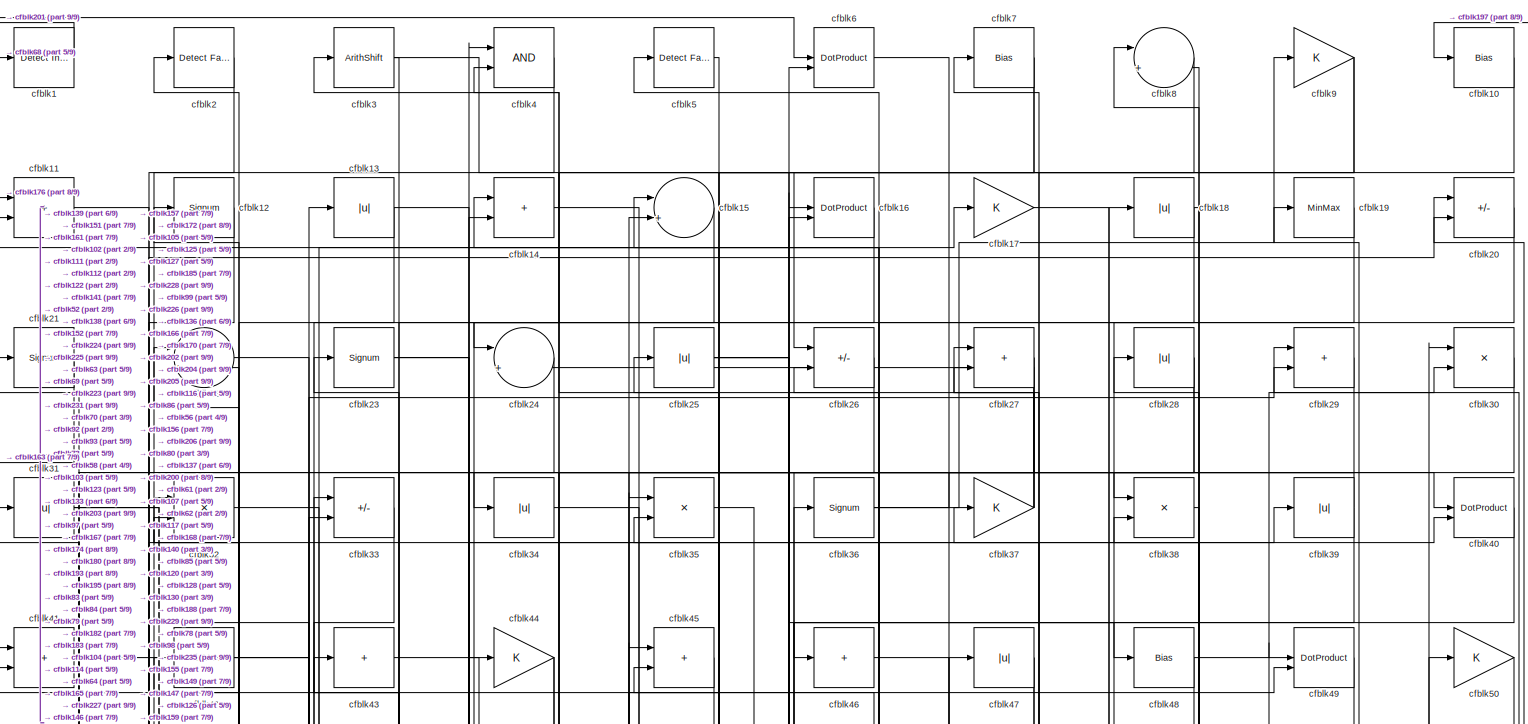
[diagram: root canvas - part 1/9, full width, top band]
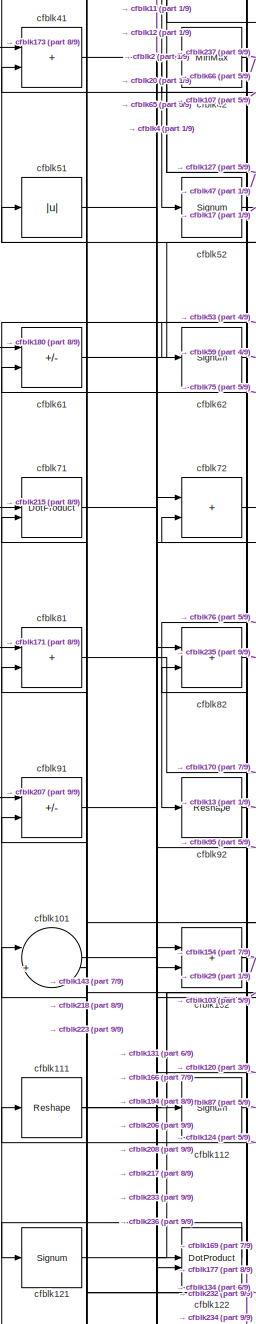
[diagram: root canvas - part 2/9, middle left region]
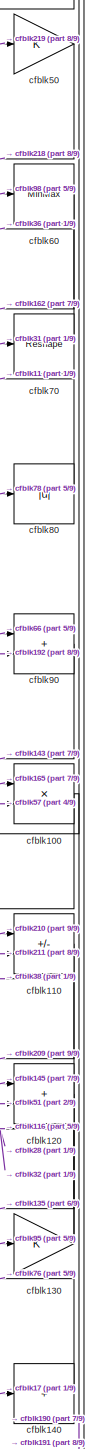
[diagram: root canvas - part 3/9, middle right region]
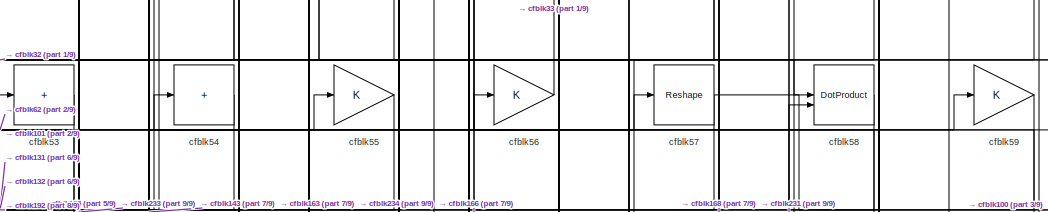
[diagram: root canvas - part 4/9, top center region]
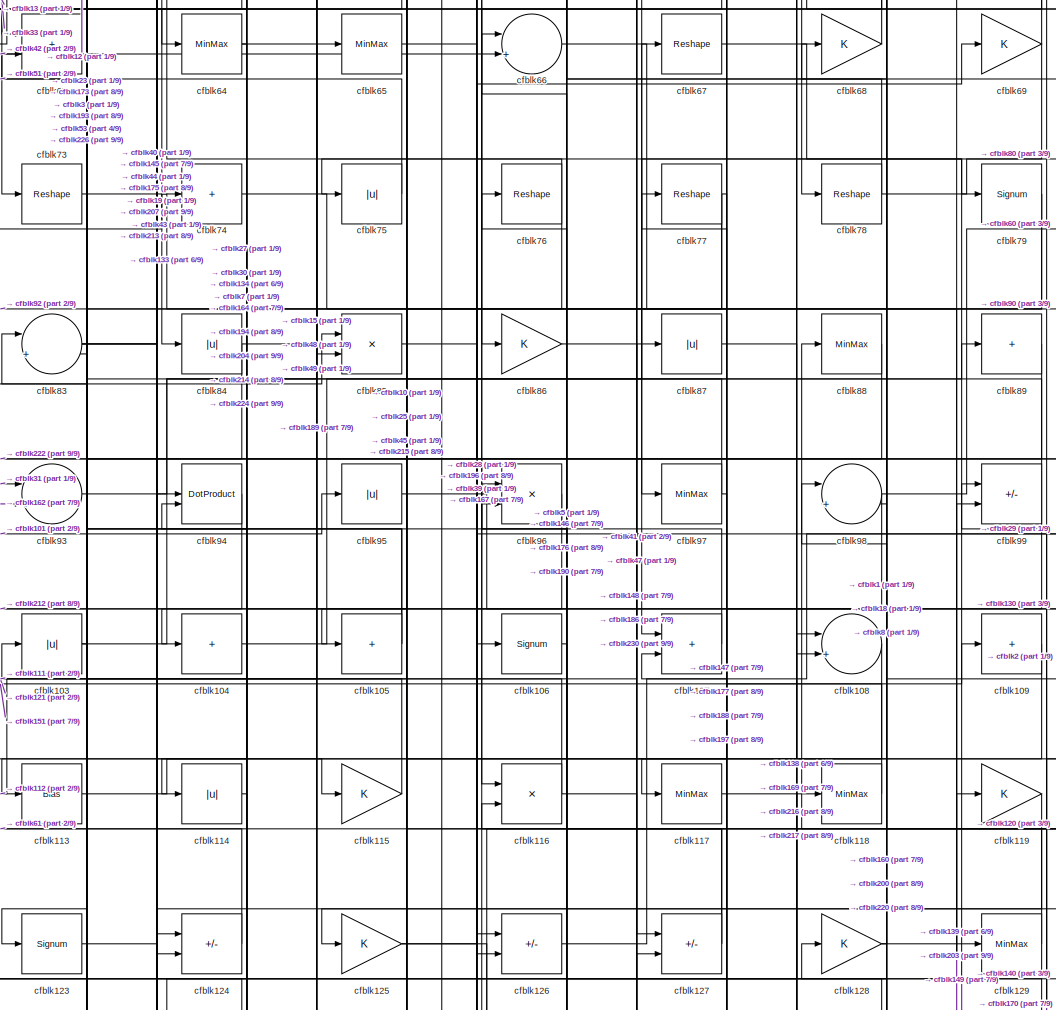
[diagram: root canvas - part 5/9, central region]
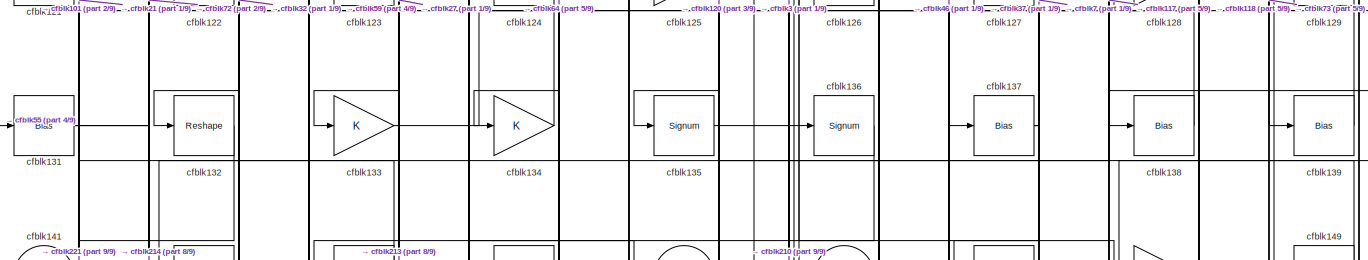
[diagram: root canvas - part 6/9, full width, middle band]
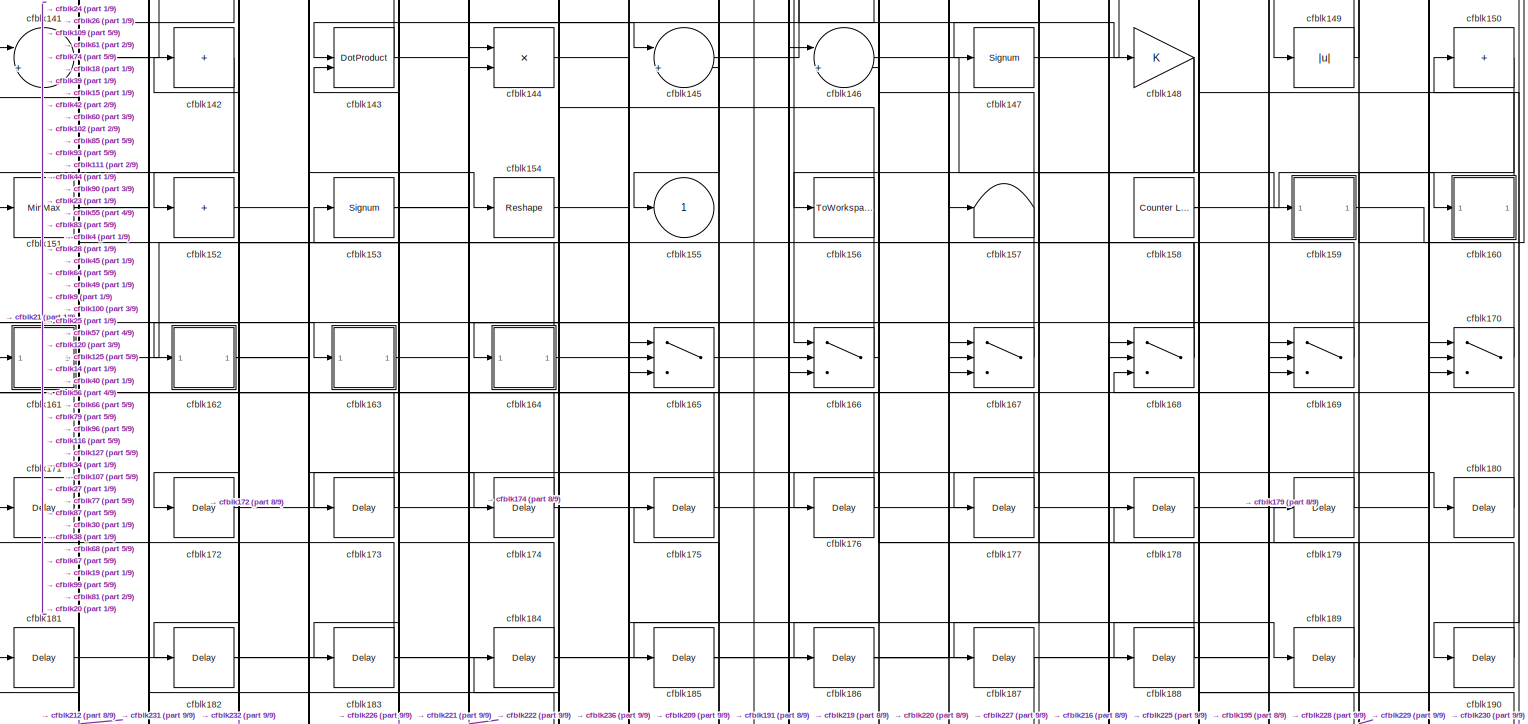
[diagram: root canvas - part 7/9, full width, bottom band]
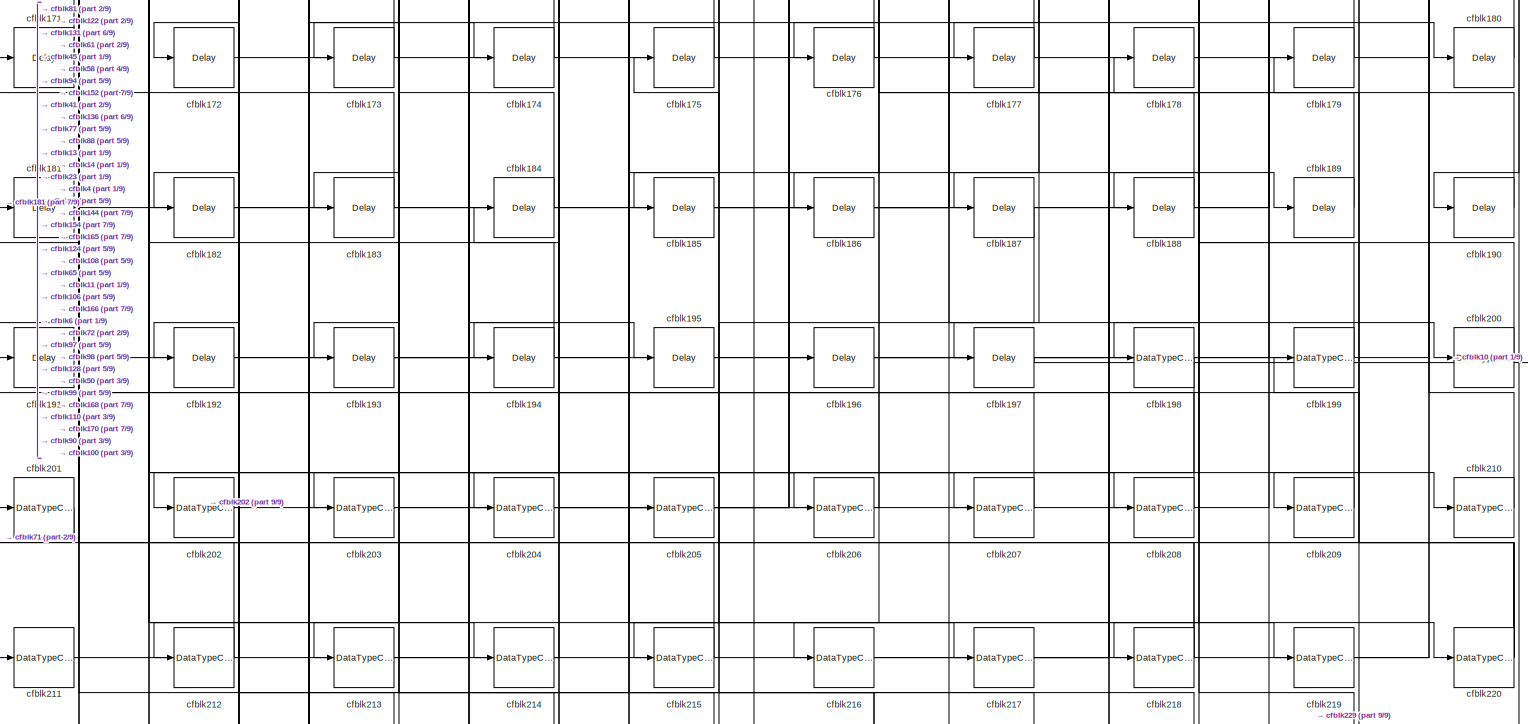
[diagram: root canvas - part 8/9, full width, bottom band]
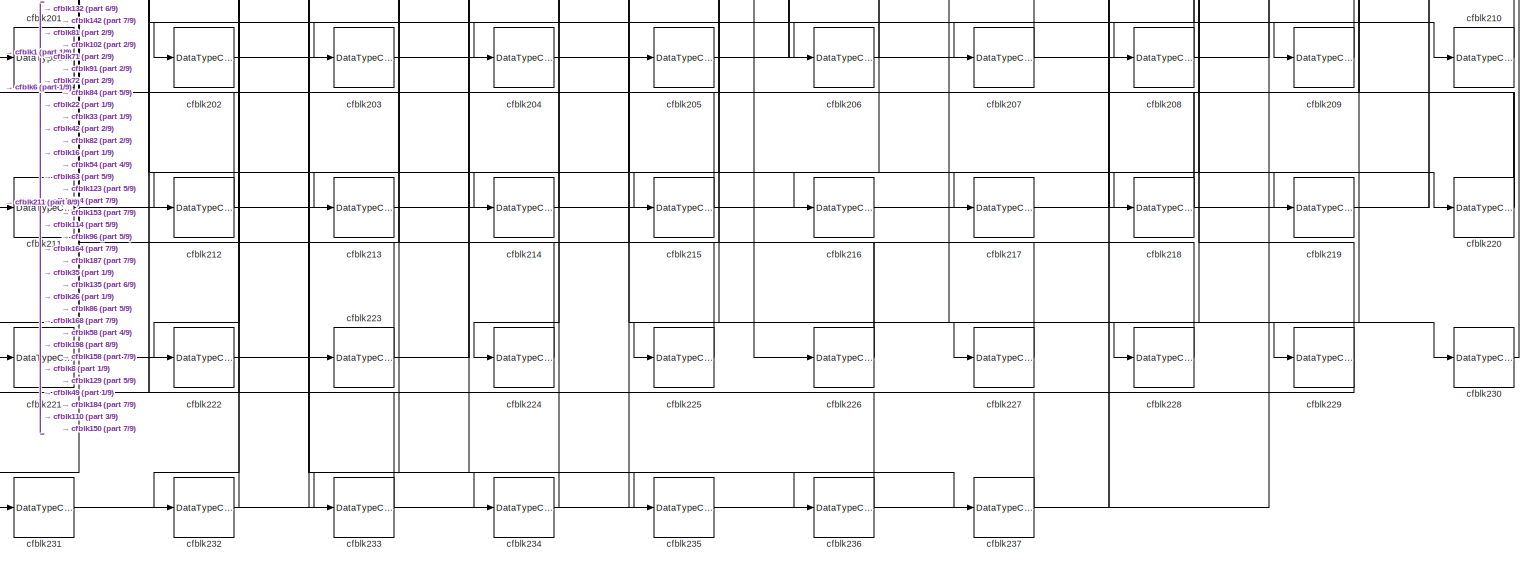
[diagram: root canvas - part 9/9, full width, bottom band]
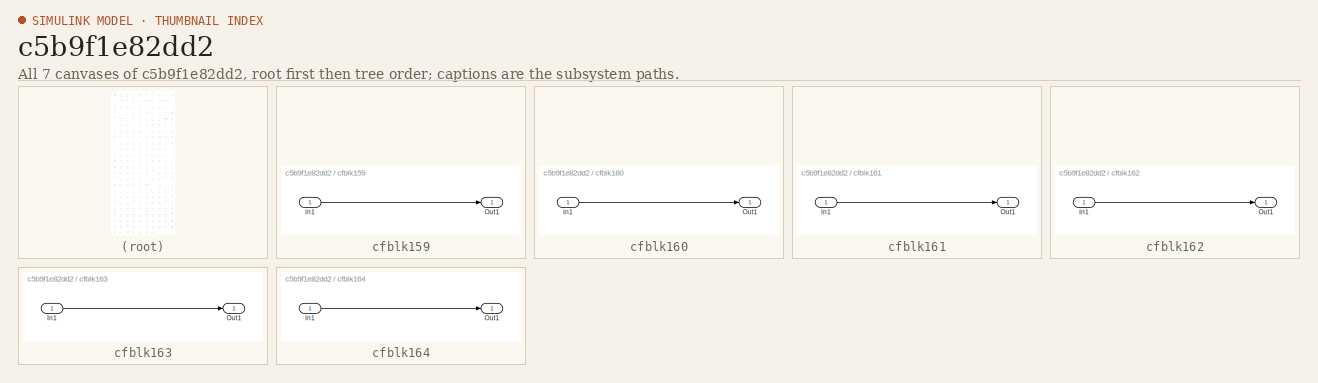
[diagram: thumbnail index - all 7 canvases of the model, root first then tree order]
MODEL slx_c5b9f1e82dd2
KIND model
CONFIG AbsTol = auto
CONFIG EnableMultiTasking = off
CONFIG FixedStep = auto
CONFIG MaxStep = auto
CONFIG MinStep = auto
CONFIG RelTol = 1e-3
CONFIG SampleTimeConstraint = Unconstrained
CONFIG SolverName = VariableStepAuto
CONFIG StartTime = 0.0
CONFIG StopTime = 10.0
BLOCK [Reference] cfblk1  REF=simulink/Logic and Bit
Operations/Detect
Increase
  LibrarySourceBlock = hdlsllib/Logic and Bit\nOperations/Detect\nIncrease
  SourceBlock = simulink/Logic and Bit\nOperations/Detect\nIncrease
  SourceType = Detect Increase
BLOCK [Bias] cfblk10
  Bias = 0.0
  SaturateOnIntegerOverflow = off
BLOCK [Product] cfblk100
  Inputs = */
  RndMeth = Zero
  SaturateOnIntegerOverflow = on
BLOCK [Sum] cfblk101
  Inputs = |++
BLOCK [Sum] cfblk102
  IconShape = rectangular
BLOCK [Abs] cfblk103
  SaturateOnIntegerOverflow = off
BLOCK [Sum] cfblk104
  IconShape = rectangular
  Inputs = +
BLOCK [Sum] cfblk105
  IconShape = rectangular
  Inputs = +
BLOCK [Signum] cfblk106
BLOCK [Sum] cfblk107
  IconShape = rectangular
BLOCK [Sum] cfblk108
  Inputs = |++
BLOCK [Sum] cfblk109
  IconShape = rectangular
  Inputs = +
BLOCK [Sum] cfblk11
  IconShape = rectangular
BLOCK [Sum] cfblk110
  IconShape = rectangular
  Inputs = +-
BLOCK [Reshape] cfblk111
BLOCK [Signum] cfblk112
BLOCK [Bias] cfblk113
  Bias = 0.0
  SaturateOnIntegerOverflow = off
BLOCK [Abs] cfblk114
  SaturateOnIntegerOverflow = off
BLOCK [Gain] cfblk115
BLOCK [Product] cfblk116
  Inputs = */
  RndMeth = Zero
  SaturateOnIntegerOverflow = on
BLOCK [MinMax] cfblk117
BLOCK [MinMax] cfblk118
BLOCK [Gain] cfblk119
BLOCK [Signum] cfblk12
BLOCK [Sum] cfblk120
  IconShape = rectangular
BLOCK [Signum] cfblk121
BLOCK [DotProduct] cfblk122
  OutDataTypeStr = Inherit: Inherit via internal rule
BLOCK [Signum] cfblk123
BLOCK [Sum] cfblk124
  IconShape = rectangular
  Inputs = +-
BLOCK [Gain] cfblk125
BLOCK [Sum] cfblk126
  IconShape = rectangular
  Inputs = +-
BLOCK [Sum] cfblk127
  IconShape = rectangular
  Inputs = +-
BLOCK [Gain] cfblk128
BLOCK [MinMax] cfblk129
BLOCK [Abs] cfblk13
  SaturateOnIntegerOverflow = off
BLOCK [Gain] cfblk130
BLOCK [Bias] cfblk131
  Bias = 0.0
  SaturateOnIntegerOverflow = off
BLOCK [Reshape] cfblk132
BLOCK [Gain] cfblk133
BLOCK [Gain] cfblk134
BLOCK [Signum] cfblk135
BLOCK [Signum] cfblk136
BLOCK [Bias] cfblk137
  Bias = 0.0
  SaturateOnIntegerOverflow = off
BLOCK [Bias] cfblk138
  Bias = 0.0
  SaturateOnIntegerOverflow = off
BLOCK [Bias] cfblk139
  Bias = 0.0
  SaturateOnIntegerOverflow = off
BLOCK [Sum] cfblk14
  IconShape = rectangular
BLOCK [Sum] cfblk140
  IconShape = rectangular
  Inputs = +
BLOCK [Sum] cfblk141
  Inputs = |++
BLOCK [Sum] cfblk142
  IconShape = rectangular
  Inputs = +
BLOCK [DotProduct] cfblk143
  OutDataTypeStr = Inherit: Inherit via internal rule
BLOCK [Product] cfblk144
  Inputs = */
  RndMeth = Zero
  SaturateOnIntegerOverflow = on
BLOCK [Sum] cfblk145
  Inputs = |++
BLOCK [Sum] cfblk146
  Inputs = |++
BLOCK [Signum] cfblk147
BLOCK [Gain] cfblk148
BLOCK [Abs] cfblk149
  SaturateOnIntegerOverflow = off
BLOCK [Sum] cfblk15
  Inputs = |++
BLOCK [Sum] cfblk150
  IconShape = rectangular
  Inputs = +
BLOCK [MinMax] cfblk151
BLOCK [Sum] cfblk152
  IconShape = rectangular
  Inputs = +
BLOCK [Signum] cfblk153
BLOCK [Reshape] cfblk154
BLOCK [Outport] cfblk155
  VectorParamsAs1DForOutWhenUnconnected = off
BLOCK [ToWorkspace] cfblk156
  MaxDataPoints = inf
  SampleTime = -1
  SaveFormat = Timeseries
  VariableName = simout
BLOCK [Terminator] cfblk157
BLOCK [Reference] cfblk158  REF=hdlsllib/Sources/Counter
Limited
  SourceBlock = hdlsllib/Sources/Counter\nLimited
  SourceType = Counter Limited
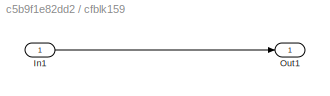
BLOCK [SubSystem] cfblk159
  LibrarySourceBlock = hdlsllib/Ports &\nSubsystems/Subsystem
BLOCK [Inport] cfblk159/In1
BLOCK [Outport] cfblk159/Out1
BLOCK [DotProduct] cfblk16
  OutDataTypeStr = Inherit: Inherit via internal rule
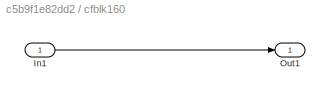
BLOCK [SubSystem] cfblk160
  LibrarySourceBlock = hdlsllib/Ports &\nSubsystems/Subsystem
BLOCK [Inport] cfblk160/In1
BLOCK [Outport] cfblk160/Out1
BLOCK [SubSystem] cfblk161
  LibrarySourceBlock = hdlsllib/Ports &\nSubsystems/Subsystem
BLOCK [Inport] cfblk161/In1
BLOCK [Outport] cfblk161/Out1
BLOCK [SubSystem] cfblk162
  LibrarySourceBlock = hdlsllib/Ports &\nSubsystems/Subsystem
BLOCK [Inport] cfblk162/In1
BLOCK [Outport] cfblk162/Out1
BLOCK [SubSystem] cfblk163
  LibrarySourceBlock = hdlsllib/Ports &\nSubsystems/Subsystem
BLOCK [Inport] cfblk163/In1
BLOCK [Outport] cfblk163/Out1
BLOCK [SubSystem] cfblk164
  LibrarySourceBlock = hdlsllib/Ports &\nSubsystems/Subsystem
BLOCK [Inport] cfblk164/In1
BLOCK [Outport] cfblk164/Out1
BLOCK [Switch] cfblk165
  InputSameDT = off
  SaturateOnIntegerOverflow = off
BLOCK [Switch] cfblk166
  InputSameDT = off
  SaturateOnIntegerOverflow = off
BLOCK [Switch] cfblk167
  InputSameDT = off
  SaturateOnIntegerOverflow = off
BLOCK [Switch] cfblk168
  InputSameDT = off
  SaturateOnIntegerOverflow = off
BLOCK [Switch] cfblk169
  InputSameDT = off
  SaturateOnIntegerOverflow = off
BLOCK [Gain] cfblk17
BLOCK [Switch] cfblk170
  InputSameDT = off
  SaturateOnIntegerOverflow = off
BLOCK [Delay] cfblk171
  InputPortMap = u0
  SampleTime = 1
BLOCK [Delay] cfblk172
  InputPortMap = u0
  SampleTime = 1
BLOCK [Delay] cfblk173
  InputPortMap = u0
  SampleTime = 1
BLOCK [Delay] cfblk174
  InputPortMap = u0
  SampleTime = 1
BLOCK [Delay] cfblk175
  InputPortMap = u0
  SampleTime = 1
BLOCK [Delay] cfblk176
  InputPortMap = u0
  SampleTime = 1
BLOCK [Delay] cfblk177
  InputPortMap = u0
  SampleTime = 1
BLOCK [Delay] cfblk178
  InputPortMap = u0
  SampleTime = 1
BLOCK [Delay] cfblk179
  InputPortMap = u0
  SampleTime = 1
BLOCK [Abs] cfblk18
  SaturateOnIntegerOverflow = off
BLOCK [Delay] cfblk180
  InputPortMap = u0
  SampleTime = 1
BLOCK [Delay] cfblk181
  InputPortMap = u0
  SampleTime = 1
BLOCK [Delay] cfblk182
  InputPortMap = u0
  SampleTime = 1
BLOCK [Delay] cfblk183
  InputPortMap = u0
  SampleTime = 1
BLOCK [Delay] cfblk184
  InputPortMap = u0
  SampleTime = 1
BLOCK [Delay] cfblk185
  InputPortMap = u0
  SampleTime = 1
BLOCK [Delay] cfblk186
  InputPortMap = u0
  SampleTime = 1
BLOCK [Delay] cfblk187
  InputPortMap = u0
  SampleTime = 1
BLOCK [Delay] cfblk188
  InputPortMap = u0
  SampleTime = 1
BLOCK [Delay] cfblk189
  InputPortMap = u0
  SampleTime = 1
BLOCK [MinMax] cfblk19
BLOCK [Delay] cfblk190
  InputPortMap = u0
  SampleTime = 1
BLOCK [Delay] cfblk191
  InputPortMap = u0
  SampleTime = 1
BLOCK [Delay] cfblk192
  InputPortMap = u0
  SampleTime = 1
BLOCK [Delay] cfblk193
  InputPortMap = u0
  SampleTime = 1
BLOCK [Delay] cfblk194
  InputPortMap = u0
  SampleTime = 1
BLOCK [Delay] cfblk195
  InputPortMap = u0
  SampleTime = 1
BLOCK [Delay] cfblk196
  InputPortMap = u0
  SampleTime = 1
BLOCK [Delay] cfblk197
  InputPortMap = u0
  SampleTime = 1
BLOCK [DataTypeConversion] cfblk198
  OutDataTypeStr = uint8
  RndMeth = Floor
  SaturateOnIntegerOverflow = off
BLOCK [DataTypeConversion] cfblk199
  OutDataTypeStr = uint8
  RndMeth = Floor
  SaturateOnIntegerOverflow = off
BLOCK [Reference] cfblk2  REF=hdlsllib/Logic and Bit
Operations/Detect Fall
Negative
  SourceBlock = hdlsllib/Logic and Bit\nOperations/Detect Fall\nNegative
  SourceType = Detect Fall Negative
BLOCK [Sum] cfblk20
  IconShape = rectangular
  Inputs = +-
BLOCK [DataTypeConversion] cfblk200
  OutDataTypeStr = uint8
  RndMeth = Floor
  SaturateOnIntegerOverflow = off
BLOCK [DataTypeConversion] cfblk201
  OutDataTypeStr = uint8
  RndMeth = Floor
  SaturateOnIntegerOverflow = off
BLOCK [DataTypeConversion] cfblk202
  OutDataTypeStr = uint8
  RndMeth = Floor
  SaturateOnIntegerOverflow = off
BLOCK [DataTypeConversion] cfblk203
  OutDataTypeStr = uint8
  RndMeth = Floor
  SaturateOnIntegerOverflow = off
BLOCK [DataTypeConversion] cfblk204
  OutDataTypeStr = uint8
  RndMeth = Floor
  SaturateOnIntegerOverflow = off
BLOCK [DataTypeConversion] cfblk205
  OutDataTypeStr = uint8
  RndMeth = Floor
  SaturateOnIntegerOverflow = off
BLOCK [DataTypeConversion] cfblk206
  OutDataTypeStr = uint8
  RndMeth = Floor
  SaturateOnIntegerOverflow = off
BLOCK [DataTypeConversion] cfblk207
  OutDataTypeStr = uint8
  RndMeth = Floor
  SaturateOnIntegerOverflow = off
BLOCK [DataTypeConversion] cfblk208
  OutDataTypeStr = uint8
  RndMeth = Floor
  SaturateOnIntegerOverflow = off
BLOCK [DataTypeConversion] cfblk209
  OutDataTypeStr = uint8
  RndMeth = Floor
  SaturateOnIntegerOverflow = off
BLOCK [Signum] cfblk21
BLOCK [DataTypeConversion] cfblk210
  OutDataTypeStr = uint8
  RndMeth = Floor
  SaturateOnIntegerOverflow = off
BLOCK [DataTypeConversion] cfblk211
  OutDataTypeStr = uint8
  RndMeth = Floor
  SaturateOnIntegerOverflow = off
BLOCK [DataTypeConversion] cfblk212
  OutDataTypeStr = uint8
  RndMeth = Floor
  SaturateOnIntegerOverflow = off
BLOCK [DataTypeConversion] cfblk213
  OutDataTypeStr = uint8
  RndMeth = Floor
  SaturateOnIntegerOverflow = off
BLOCK [DataTypeConversion] cfblk214
  OutDataTypeStr = uint8
  RndMeth = Floor
  SaturateOnIntegerOverflow = off
BLOCK [DataTypeConversion] cfblk215
  OutDataTypeStr = uint8
  RndMeth = Floor
  SaturateOnIntegerOverflow = off
BLOCK [DataTypeConversion] cfblk216
  OutDataTypeStr = uint8
  RndMeth = Floor
  SaturateOnIntegerOverflow = off
BLOCK [DataTypeConversion] cfblk217
  OutDataTypeStr = uint8
  RndMeth = Floor
  SaturateOnIntegerOverflow = off
BLOCK [DataTypeConversion] cfblk218
  RndMeth = Floor
  SaturateOnIntegerOverflow = off
BLOCK [DataTypeConversion] cfblk219
  OutDataTypeStr = uint8
  RndMeth = Floor
  SaturateOnIntegerOverflow = off
BLOCK [Sum] cfblk22
  Inputs = |++
BLOCK [DataTypeConversion] cfblk220
  RndMeth = Floor
  SaturateOnIntegerOverflow = off
BLOCK [DataTypeConversion] cfblk221
  OutDataTypeStr = uint8
  RndMeth = Floor
  SaturateOnIntegerOverflow = off
BLOCK [DataTypeConversion] cfblk222
  OutDataTypeStr = uint8
  RndMeth = Floor
  SaturateOnIntegerOverflow = off
BLOCK [DataTypeConversion] cfblk223
  OutDataTypeStr = uint8
  RndMeth = Floor
  SaturateOnIntegerOverflow = off
BLOCK [DataTypeConversion] cfblk224
  OutDataTypeStr = uint8
  RndMeth = Floor
  SaturateOnIntegerOverflow = off
BLOCK [DataTypeConversion] cfblk225
  OutDataTypeStr = uint8
  RndMeth = Floor
  SaturateOnIntegerOverflow = off
BLOCK [DataTypeConversion] cfblk226
  RndMeth = Floor
  SaturateOnIntegerOverflow = off
BLOCK [DataTypeConversion] cfblk227
  OutDataTypeStr = uint8
  RndMeth = Floor
  SaturateOnIntegerOverflow = off
BLOCK [DataTypeConversion] cfblk228
  OutDataTypeStr = uint8
  RndMeth = Floor
  SaturateOnIntegerOverflow = off
BLOCK [DataTypeConversion] cfblk229
  RndMeth = Floor
  SaturateOnIntegerOverflow = off
BLOCK [Signum] cfblk23
BLOCK [DataTypeConversion] cfblk230
  OutDataTypeStr = uint8
  RndMeth = Floor
  SaturateOnIntegerOverflow = off
BLOCK [DataTypeConversion] cfblk231
  RndMeth = Floor
  SaturateOnIntegerOverflow = off
BLOCK [DataTypeConversion] cfblk232
  OutDataTypeStr = uint8
  RndMeth = Floor
  SaturateOnIntegerOverflow = off
BLOCK [DataTypeConversion] cfblk233
  RndMeth = Floor
  SaturateOnIntegerOverflow = off
BLOCK [DataTypeConversion] cfblk234
  OutDataTypeStr = uint8
  RndMeth = Floor
  SaturateOnIntegerOverflow = off
BLOCK [DataTypeConversion] cfblk235
  OutDataTypeStr = uint8
  RndMeth = Floor
  SaturateOnIntegerOverflow = off
BLOCK [DataTypeConversion] cfblk236
  OutDataTypeStr = uint8
  RndMeth = Floor
  SaturateOnIntegerOverflow = off
BLOCK [DataTypeConversion] cfblk237
  OutDataTypeStr = uint8
  RndMeth = Floor
  SaturateOnIntegerOverflow = off
BLOCK [Sum] cfblk24
  Inputs = |++
BLOCK [Abs] cfblk25
  SaturateOnIntegerOverflow = off
BLOCK [Sum] cfblk26
  IconShape = rectangular
  Inputs = +-
BLOCK [Sum] cfblk27
  IconShape = rectangular
BLOCK [Abs] cfblk28
  SaturateOnIntegerOverflow = off
BLOCK [Sum] cfblk29
  IconShape = rectangular
BLOCK [ArithShift] cfblk3
  BitShiftNumber = 8
  InputPortMap = u0
BLOCK [Product] cfblk30
  Inputs = */
  RndMeth = Zero
  SaturateOnIntegerOverflow = on
BLOCK [Abs] cfblk31
  SaturateOnIntegerOverflow = off
BLOCK [Product] cfblk32
  Inputs = */
  RndMeth = Zero
  SaturateOnIntegerOverflow = on
BLOCK [Sum] cfblk33
  IconShape = rectangular
  Inputs = +-
BLOCK [Abs] cfblk34
  SaturateOnIntegerOverflow = off
BLOCK [Product] cfblk35
  Inputs = */
  RndMeth = Zero
  SaturateOnIntegerOverflow = on
BLOCK [Signum] cfblk36
BLOCK [Gain] cfblk37
BLOCK [Product] cfblk38
  Inputs = */
  RndMeth = Zero
  SaturateOnIntegerOverflow = on
BLOCK [Abs] cfblk39
  SaturateOnIntegerOverflow = off
BLOCK [Logic] cfblk4
  AllPortsSameDT = off
  OutDataTypeStr = boolean
BLOCK [DotProduct] cfblk40
  OutDataTypeStr = Inherit: Inherit via internal rule
BLOCK [Sum] cfblk41
  IconShape = rectangular
BLOCK [MinMax] cfblk42
BLOCK [Sum] cfblk43
  IconShape = rectangular
  Inputs = +
BLOCK [Gain] cfblk44
BLOCK [Sum] cfblk45
  IconShape = rectangular
BLOCK [Sum] cfblk46
  IconShape = rectangular
  Inputs = +
BLOCK [Abs] cfblk47
  SaturateOnIntegerOverflow = off
BLOCK [Bias] cfblk48
  Bias = 0.0
  SaturateOnIntegerOverflow = off
BLOCK [DotProduct] cfblk49
  OutDataTypeStr = Inherit: Inherit via internal rule
BLOCK [Reference] cfblk5  REF=hdlsllib/Logic and Bit
Operations/Detect Fall
Nonpositive
  SourceBlock = hdlsllib/Logic and Bit\nOperations/Detect Fall\nNonpositive
  SourceType = Detect Fall Nonpositive
BLOCK [Gain] cfblk50
BLOCK [Abs] cfblk51
  SaturateOnIntegerOverflow = off
BLOCK [Signum] cfblk52
BLOCK [Sum] cfblk53
  IconShape = rectangular
  Inputs = +
BLOCK [Sum] cfblk54
  IconShape = rectangular
  Inputs = +
BLOCK [Gain] cfblk55
BLOCK [Gain] cfblk56
BLOCK [Reshape] cfblk57
BLOCK [DotProduct] cfblk58
  OutDataTypeStr = Inherit: Inherit via internal rule
BLOCK [Gain] cfblk59
BLOCK [DotProduct] cfblk6
  OutDataTypeStr = Inherit: Inherit via internal rule
BLOCK [MinMax] cfblk60
BLOCK [Sum] cfblk61
  IconShape = rectangular
  Inputs = +-
BLOCK [Signum] cfblk62
BLOCK [Sum] cfblk63
  IconShape = rectangular
BLOCK [MinMax] cfblk64
BLOCK [MinMax] cfblk65
BLOCK [Sum] cfblk66
  Inputs = |++
BLOCK [Reshape] cfblk67
BLOCK [Gain] cfblk68
BLOCK [Gain] cfblk69
BLOCK [Bias] cfblk7
  Bias = 0.0
  SaturateOnIntegerOverflow = off
BLOCK [Reshape] cfblk70
BLOCK [DotProduct] cfblk71
  OutDataTypeStr = Inherit: Inherit via internal rule
BLOCK [Sum] cfblk72
  IconShape = rectangular
BLOCK [Reshape] cfblk73
BLOCK [Sum] cfblk74
  IconShape = rectangular
  Inputs = +
BLOCK [Abs] cfblk75
  SaturateOnIntegerOverflow = off
BLOCK [Reshape] cfblk76
BLOCK [Reshape] cfblk77
BLOCK [Reshape] cfblk78
BLOCK [Signum] cfblk79
BLOCK [Sum] cfblk8
  Inputs = |++
BLOCK [Abs] cfblk80
  SaturateOnIntegerOverflow = off
BLOCK [Sum] cfblk81
  IconShape = rectangular
BLOCK [Sum] cfblk82
  IconShape = rectangular
BLOCK [Sum] cfblk83
  Inputs = |++
BLOCK [Abs] cfblk84
  SaturateOnIntegerOverflow = off
BLOCK [Product] cfblk85
  Inputs = */
  RndMeth = Zero
  SaturateOnIntegerOverflow = on
BLOCK [Gain] cfblk86
BLOCK [Abs] cfblk87
  SaturateOnIntegerOverflow = off
BLOCK [MinMax] cfblk88
BLOCK [Sum] cfblk89
  IconShape = rectangular
  Inputs = +
BLOCK [Gain] cfblk9
BLOCK [Sum] cfblk90
  IconShape = rectangular
BLOCK [Sum] cfblk91
  IconShape = rectangular
  Inputs = +-
BLOCK [Reshape] cfblk92
BLOCK [Sum] cfblk93
  Inputs = |++
BLOCK [DotProduct] cfblk94
  OutDataTypeStr = Inherit: Inherit via internal rule
BLOCK [Abs] cfblk95
  SaturateOnIntegerOverflow = off
BLOCK [Product] cfblk96
  Inputs = */
  RndMeth = Zero
  SaturateOnIntegerOverflow = on
BLOCK [MinMax] cfblk97
BLOCK [Sum] cfblk98
  Inputs = |++
BLOCK [Sum] cfblk99
  IconShape = rectangular
  Inputs = +-
NET cfblk100:1 -> cfblk190:1, cfblk191:1
LINE cfblk101:1 -> cfblk95:1
NET cfblk102:1 -> cfblk154:1, cfblk29:2
NET cfblk103:1 -> cfblk23:1, cfblk67:1
LINE cfblk104:1 -> cfblk89:1
NET cfblk105:1 -> cfblk53:1, cfblk83:2
LINE cfblk106:1 -> cfblk176:1
LINE cfblk107:1 -> cfblk41:2
LINE cfblk108:1 -> cfblk215:1
LINE cfblk109:1 -> cfblk113:1
LINE cfblk10:1 -> cfblk125:1
LINE cfblk110:1 -> cfblk209:1
NET cfblk111:1 -> cfblk20:2, cfblk65:1
LINE cfblk112:1 -> cfblk87:1
LINE cfblk113:1 -> cfblk115:1
LINE cfblk114:1 -> cfblk204:1
LINE cfblk115:1 -> cfblk83:1
NET cfblk116:1 -> cfblk148:1, cfblk31:1
LINE cfblk117:1 -> cfblk138:1
LINE cfblk118:1 -> cfblk77:1
LINE cfblk119:1 -> cfblk124:2
LINE cfblk11:1 -> cfblk112:1
NET cfblk120:1 -> cfblk116:2, cfblk135:1, cfblk38:2
LINE cfblk121:1 -> cfblk103:1
LINE cfblk122:1 -> cfblk121:1
LINE cfblk123:1 -> cfblk207:1
LINE cfblk124:1 -> cfblk61:2
NET cfblk125:1 -> cfblk167:1, cfblk69:1
LINE cfblk126:1 -> cfblk29:1
NET cfblk127:1 -> cfblk25:1, cfblk96:1
NET cfblk128:1 -> cfblk119:1, cfblk8:2
LINE cfblk129:1 -> cfblk88:1
LINE cfblk12:1 -> cfblk122:2
NET cfblk130:1 -> cfblk28:1, cfblk32:2
NET cfblk131:1 -> cfblk214:1, cfblk72:1
LINE cfblk132:1 -> cfblk221:1
LINE cfblk133:1 -> cfblk118:1
LINE cfblk134:1 -> cfblk101:1
LINE cfblk135:1 -> cfblk210:1
LINE cfblk136:1 -> cfblk213:1
NET cfblk137:1 -> cfblk37:1, cfblk7:1
LINE cfblk138:1 -> cfblk32:1
LINE cfblk139:1 -> cfblk21:1
NET cfblk13:1 -> cfblk195:1, cfblk63:1
LINE cfblk140:1 -> cfblk76:1
NET cfblk141:1 -> cfblk18:1, cfblk39:1
LINE cfblk142:1 -> cfblk231:1
NET cfblk143:1 -> cfblk111:1, cfblk55:1
LINE cfblk144:1 -> cfblk220:1
LINE cfblk145:1 -> cfblk120:1
LINE cfblk146:1 -> cfblk159:1
LINE cfblk147:1 -> cfblk30:1
NET cfblk148:1 -> cfblk186:1, cfblk187:1
NET cfblk149:1 -> cfblk15:1, cfblk19:1
LINE cfblk14:1 -> cfblk146:1
LINE cfblk150:1 -> cfblk229:1
NET cfblk151:1 -> cfblk109:1, cfblk74:1
LINE cfblk152:1 -> cfblk174:1
NET cfblk153:1 -> cfblk165:3, cfblk236:1
LINE cfblk154:1 -> cfblk219:1
NET cfblk158:1 -> cfblk160:1, cfblk228:1
LINE cfblk159/In1:1 -> cfblk159/Out1:1
LINE cfblk159:1 -> cfblk20:1
LINE cfblk15:1 -> cfblk152:1
LINE cfblk160/In1:1 -> cfblk160/Out1:1
LINE cfblk160:1 -> cfblk68:1
LINE cfblk161/In1:1 -> cfblk161/Out1:1
LINE cfblk161:1 -> cfblk45:1
LINE cfblk162/In1:1 -> cfblk162/Out1:1
NET cfblk162:1 -> cfblk85:1, cfblk93:2
LINE cfblk163/In1:1 -> cfblk163/Out1:1
LINE cfblk163:1 -> cfblk57:1
LINE cfblk164/In1:1 -> cfblk164/Out1:1
NET cfblk164:1 -> cfblk141:1, cfblk227:1
LINE cfblk165:1 -> cfblk100:1
NET cfblk166:1 -> cfblk216:1, cfblk4:2
LINE cfblk167:1 -> cfblk14:1
NET cfblk168:1 -> cfblk27:1, cfblk56:1
LINE cfblk169:1 -> cfblk42:1
LINE cfblk16:1 -> cfblk203:1
LINE cfblk170:1 -> cfblk99:1
LINE cfblk171:1 -> cfblk81:1
LINE cfblk172:1 -> cfblk170:1
LINE cfblk173:1 -> cfblk41:1
LINE cfblk174:1 -> cfblk4:1
LINE cfblk175:1 -> cfblk124:1
LINE cfblk176:1 -> cfblk11:1
LINE cfblk177:1 -> cfblk72:2
LINE cfblk178:1 -> cfblk198:1
LINE cfblk179:1 -> cfblk168:3
LINE cfblk17:1 -> cfblk140:1
LINE cfblk180:1 -> cfblk61:1
LINE cfblk181:1 -> cfblk169:1
LINE cfblk182:1 -> cfblk169:2
LINE cfblk183:1 -> cfblk141:2
LINE cfblk184:1 -> cfblk143:2
LINE cfblk185:1 -> cfblk167:2
LINE cfblk186:1 -> cfblk127:2
LINE cfblk187:1 -> cfblk225:1
LINE cfblk188:1 -> cfblk107:2
LINE cfblk189:1 -> cfblk66:1
NET cfblk18:1 -> cfblk78:1, cfblk98:2
LINE cfblk190:1 -> cfblk96:2
LINE cfblk191:1 -> cfblk165:1
LINE cfblk192:1 -> cfblk90:2
LINE cfblk193:1 -> cfblk14:2
LINE cfblk194:1 -> cfblk122:1
LINE cfblk195:1 -> cfblk168:2
LINE cfblk196:1 -> cfblk99:2
LINE cfblk197:1 -> cfblk10:1
LINE cfblk198:1 -> cfblk202:1
LINE cfblk199:1 -> cfblk178:1
LINE cfblk19:1 -> cfblk84:1
LINE cfblk1:1 -> cfblk201:1
LINE cfblk200:1 -> cfblk128:1
LINE cfblk201:1 -> cfblk6:1
LINE cfblk202:1 -> cfblk6:2
LINE cfblk203:1 -> cfblk129:1
LINE cfblk204:1 -> cfblk16:1
LINE cfblk205:1 -> cfblk16:2
LINE cfblk206:1 -> cfblk26:2
LINE cfblk207:1 -> cfblk91:1
LINE cfblk208:1 -> cfblk91:2
LINE cfblk209:1 -> cfblk184:1
LINE cfblk20:1 -> cfblk46:1
LINE cfblk210:1 -> cfblk110:1
LINE cfblk211:1 -> cfblk110:2
LINE cfblk212:1 -> cfblk181:1
LINE cfblk213:1 -> cfblk94:1
LINE cfblk214:1 -> cfblk94:2
LINE cfblk215:1 -> cfblk71:1
LINE cfblk216:1 -> cfblk108:1
LINE cfblk217:1 -> cfblk108:2
NET cfblk218:1 -> cfblk171:1, cfblk71:2
LINE cfblk219:1 -> cfblk50:1
LINE cfblk21:1 -> cfblk163:1
NET cfblk220:1 -> cfblk175:1, cfblk179:1, cfblk199:1, cfblk98:1
LINE cfblk221:1 -> cfblk144:1
LINE cfblk222:1 -> cfblk144:2
LINE cfblk223:1 -> cfblk81:2
LINE cfblk224:1 -> cfblk22:1
LINE cfblk225:1 -> cfblk22:2
NET cfblk226:1 -> cfblk153:1, cfblk63:2
LINE cfblk227:1 -> cfblk35:1
LINE cfblk228:1 -> cfblk35:2
NET cfblk229:1 -> cfblk211:1, cfblk8:1
LINE cfblk22:1 -> cfblk223:1
LINE cfblk230:1 -> cfblk150:1
NET cfblk231:1 -> cfblk168:1, cfblk33:2, cfblk58:2
LINE cfblk232:1 -> cfblk142:1
NET cfblk233:1 -> cfblk102:1, cfblk205:1
LINE cfblk234:1 -> cfblk54:1
LINE cfblk235:1 -> cfblk49:1
LINE cfblk236:1 -> cfblk82:1
LINE cfblk237:1 -> cfblk82:2
NET cfblk23:1 -> cfblk167:3, cfblk180:1
LINE cfblk24:1 -> cfblk151:1
NET cfblk25:1 -> cfblk166:2, cfblk170:3, cfblk48:1
LINE cfblk26:1 -> cfblk161:1
NET cfblk27:1 -> cfblk133:1, cfblk64:1
NET cfblk28:1 -> cfblk116:1, cfblk165:2
LINE cfblk29:1 -> cfblk34:1
LINE cfblk2:1 -> cfblk102:2
LINE cfblk30:1 -> cfblk114:1
NET cfblk31:1 -> cfblk70:1, cfblk93:1
LINE cfblk32:1 -> cfblk58:1
LINE cfblk33:1 -> cfblk73:1
LINE cfblk34:1 -> cfblk157:1
LINE cfblk35:1 -> cfblk226:1
NET cfblk36:1 -> cfblk40:1, cfblk9:1
NET cfblk37:1 -> cfblk24:2, cfblk27:2, cfblk3:1
LINE cfblk38:1 -> cfblk188:1
NET cfblk39:1 -> cfblk38:1, cfblk86:1
NET cfblk3:1 -> cfblk123:1, cfblk136:1
LINE cfblk40:1 -> cfblk156:1
LINE cfblk41:1 -> cfblk127:1
NET cfblk42:1 -> cfblk237:1, cfblk66:2
LINE cfblk43:1 -> cfblk79:1
NET cfblk44:1 -> cfblk182:1, cfblk183:1
LINE cfblk45:1 -> cfblk172:1
LINE cfblk46:1 -> cfblk137:1
NET cfblk47:1 -> cfblk107:1, cfblk62:1
NET cfblk48:1 -> cfblk30:2, cfblk85:2
LINE cfblk49:1 -> cfblk155:1
LINE cfblk4:1 -> cfblk52:1
LINE cfblk50:1 -> cfblk218:1
LINE cfblk51:1 -> cfblk120:2
LINE cfblk52:1 -> cfblk17:1
LINE cfblk53:1 -> cfblk101:2
LINE cfblk54:1 -> cfblk233:1
LINE cfblk55:1 -> cfblk131:1
LINE cfblk56:1 -> cfblk33:1
NET cfblk57:1 -> cfblk100:2, cfblk166:1
LINE cfblk58:1 -> cfblk192:1
LINE cfblk59:1 -> cfblk132:1
LINE cfblk5:1 -> cfblk105:1
LINE cfblk60:1 -> cfblk162:1
NET cfblk61:1 -> cfblk166:3, cfblk217:1, cfblk47:1
LINE cfblk62:1 -> cfblk59:1
LINE cfblk63:1 -> cfblk12:1
NET cfblk64:1 -> cfblk134:1, cfblk189:1
LINE cfblk65:1 -> cfblk196:1
LINE cfblk66:1 -> cfblk90:1
LINE cfblk67:1 -> cfblk149:1
LINE cfblk68:1 -> cfblk1:1
NET cfblk69:1 -> cfblk2:1, cfblk97:1
LINE cfblk6:1 -> cfblk200:1
LINE cfblk70:1 -> cfblk36:1
LINE cfblk71:1 -> cfblk208:1
NET cfblk72:1 -> cfblk232:1, cfblk234:1
LINE cfblk73:1 -> cfblk139:1
LINE cfblk74:1 -> cfblk126:1
LINE cfblk75:1 -> cfblk51:1
NET cfblk76:1 -> cfblk75:1, cfblk92:1
NET cfblk77:1 -> cfblk126:2, cfblk147:1, cfblk193:1
NET cfblk78:1 -> cfblk5:1, cfblk80:1
NET cfblk79:1 -> cfblk145:2, cfblk146:2
NET cfblk7:1 -> cfblk104:1, cfblk24:1
LINE cfblk80:1 -> cfblk11:2
LINE cfblk81:1 -> cfblk170:2
LINE cfblk82:1 -> cfblk235:1
NET cfblk83:1 -> cfblk145:1, cfblk40:2, cfblk44:1
NET cfblk84:1 -> cfblk222:1, cfblk49:2
LINE cfblk85:1 -> cfblk106:1
LINE cfblk86:1 -> cfblk230:1
LINE cfblk87:1 -> cfblk169:3
LINE cfblk88:1 -> cfblk173:1
LINE cfblk89:1 -> cfblk194:1
LINE cfblk8:1 -> cfblk117:1
LINE cfblk90:1 -> cfblk143:1
LINE cfblk91:1 -> cfblk206:1
LINE cfblk92:1 -> cfblk13:1
LINE cfblk93:1 -> cfblk15:2
LINE cfblk94:1 -> cfblk212:1
LINE cfblk95:1 -> cfblk130:1
LINE cfblk96:1 -> cfblk224:1
NET cfblk97:1 -> cfblk197:1, cfblk43:1
NET cfblk98:1 -> cfblk177:1, cfblk60:1
NET cfblk99:1 -> cfblk164:1, cfblk45:2
NET cfblk9:1 -> cfblk185:1, cfblk26:1
note: NET lines group one-source signal fan-out (src -> all destinations, sorted); 1:1 wires keep LINE
